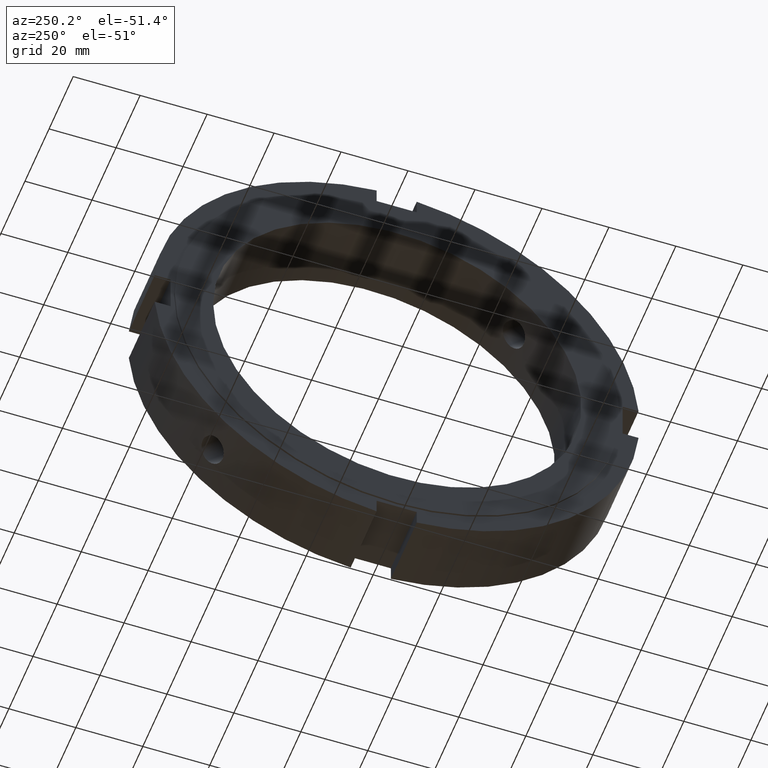
[diagram: clean part render]
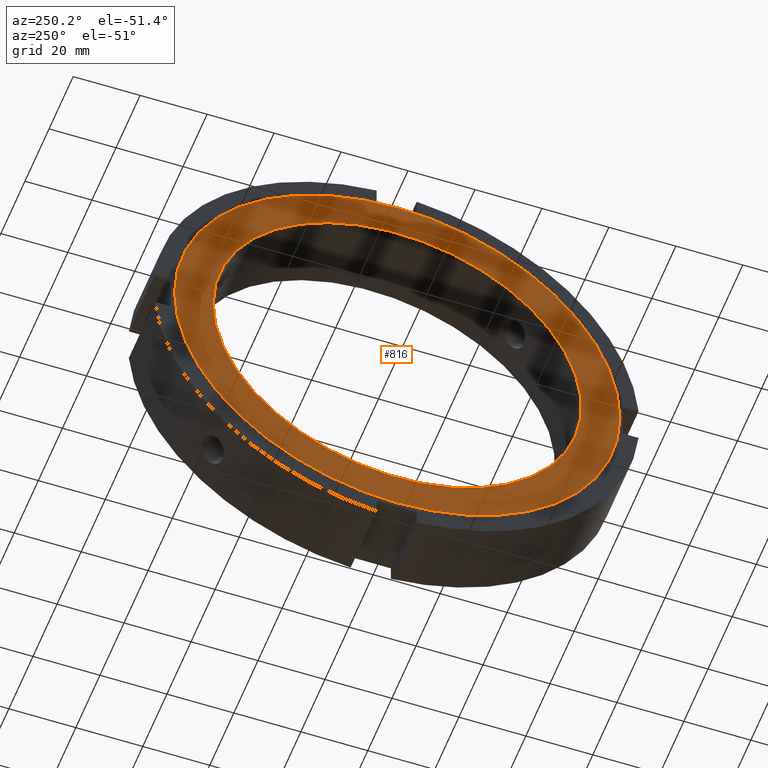
[diagram: same view with one face highlighted and labeled with its STEP entity id]
A machine part, auxiliary view. The second image highlights one B-rep face of the part: STEP entity #816.
In plain terms, the highlighted planar face has unit normal (-1, 0, 0).
Its self-contained STEP definition (entity closure, byte-faithful):
#789=CARTESIAN_POINT('',(-1.685414E-014,60.750000000000000,0.0));
#790=DIRECTION('',(-1.0,0.0,0.0));
#791=DIRECTION('',(0.0,0.0,1.0));
#792=AXIS2_PLACEMENT_3D('',#789,#790,#791);
#793=PLANE('',#792);
#794=CARTESIAN_POINT('',(-1.776357E-014,66.500000000000000,0.0));
#795=VERTEX_POINT('',#794);
#796=CARTESIAN_POINT('',(-1.776357E-014,0.0,0.0));
#797=DIRECTION('',(1.0,0.0,0.0));
#798=DIRECTION('',(0.0,1.0,0.0));
#799=AXIS2_PLACEMENT_3D('',#796,#797,#798);
#800=CIRCLE('',#799,66.500000000000000);
#801=EDGE_CURVE('',#795,#795,#800,.T.);
#802=ORIENTED_EDGE('',*,*,#801,.F.);
#803=EDGE_LOOP('',(#802));
#804=FACE_OUTER_BOUND('',#803,.T.);
#805=CARTESIAN_POINT('',(-1.594471E-014,55.0,0.0));
#806=VERTEX_POINT('',#805);
#807=CARTESIAN_POINT('',(-1.594645E-014,0.0,0.0));
#808=DIRECTION('',(1.0,0.0,0.0));
#809=DIRECTION('',(0.0,1.0,0.0));
#810=AXIS2_PLACEMENT_3D('',#807,#808,#809);
#811=CIRCLE('',#810,55.0);
#812=EDGE_CURVE('',#806,#806,#811,.T.);
#813=ORIENTED_EDGE('',*,*,#812,.T.);
#814=EDGE_LOOP('',(#813));
#815=FACE_BOUND('',#814,.T.);
#816=ADVANCED_FACE('',(#804,#815),#793,.T.);